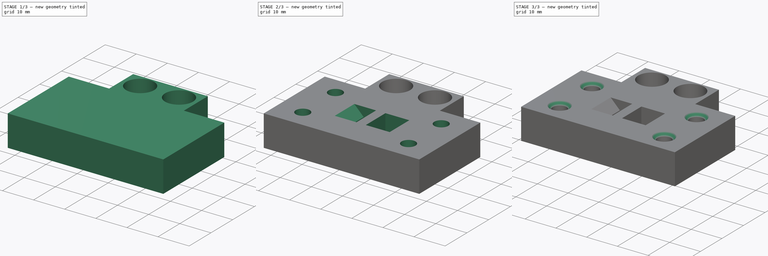
[diagram: build sequence overview — one tinted view per stage of 3, left to right]
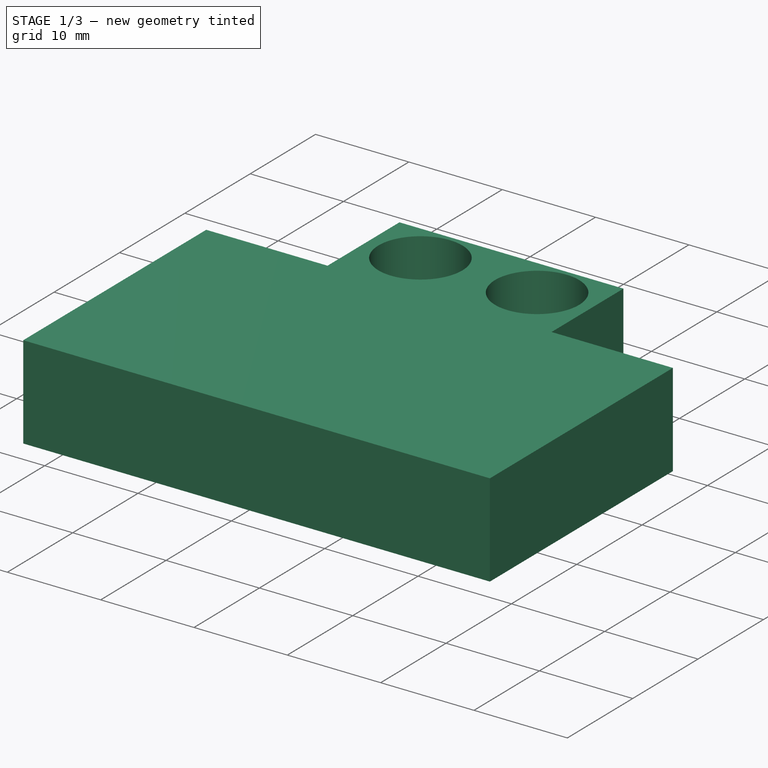
[diagram: stage 1 of 3 — iso view after this stage's code; geometry added in this stage tinted green]
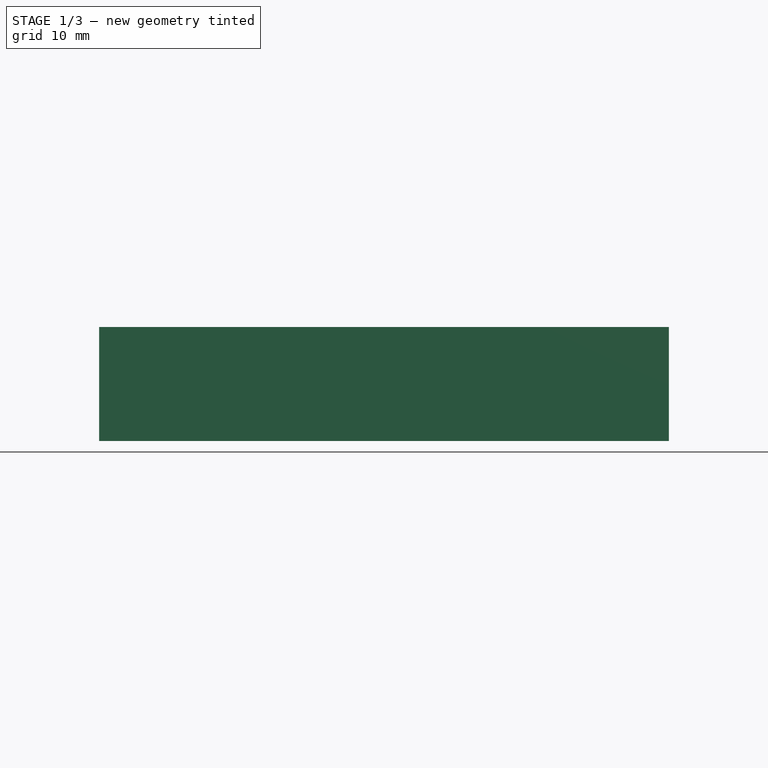
[diagram: stage 1 of 3 — front view after this stage's code; geometry added in this stage tinted green]
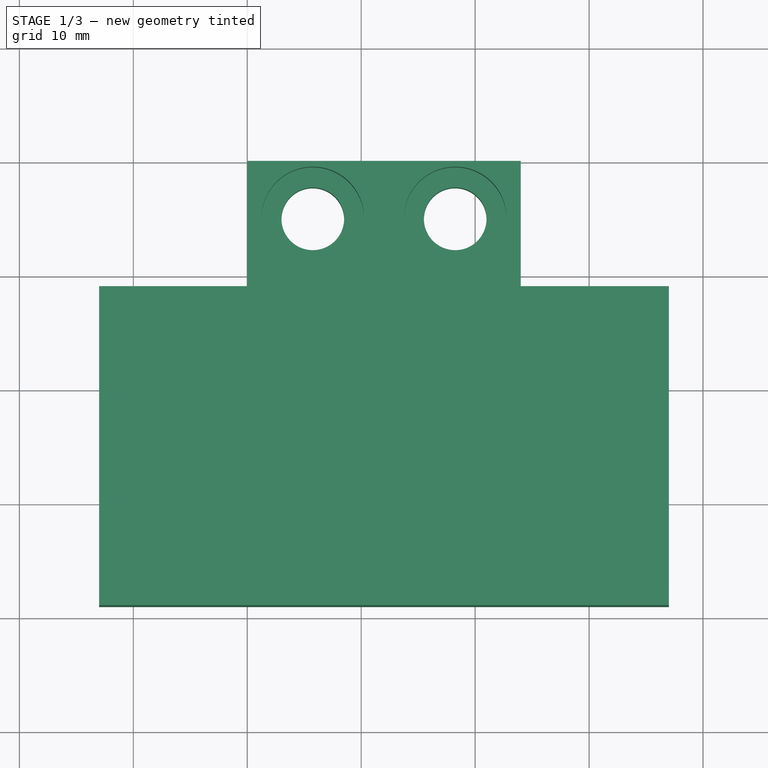
[diagram: stage 1 of 3 — top view after this stage's code; geometry added in this stage tinted green]
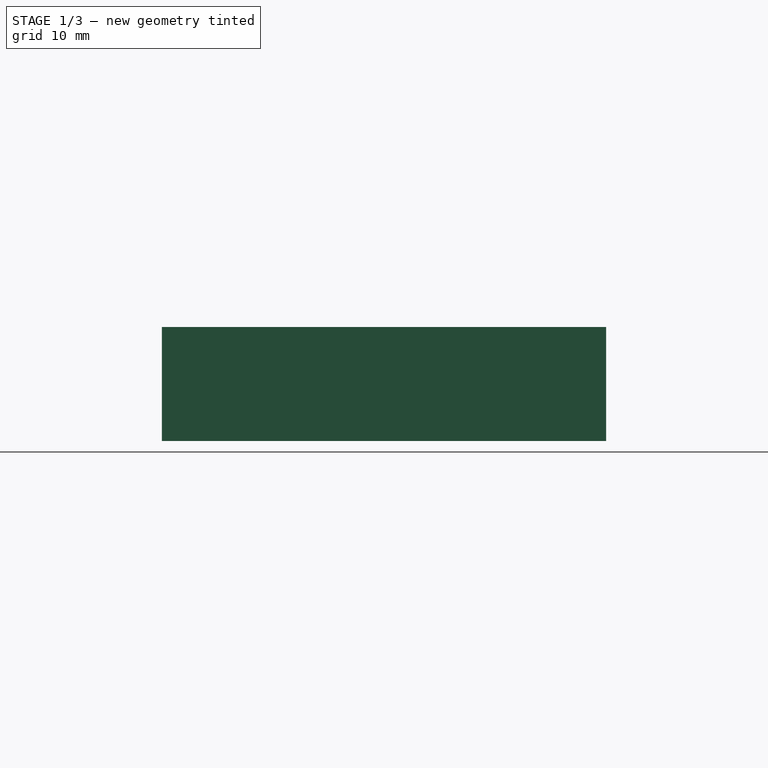
[diagram: stage 1 of 3 — right view after this stage's code; geometry added in this stage tinted green]
FCSTD DOCUMENT  (FreeCAD 0.19R24267 +148 (Git))
Label: X gantry belt holder
License: All rights reserved
LicenseURL: http://en.wikipedia.org/wiki/All_rights_reserved
objects: Sketcher::SketchObject×5, PartDesign::Pad×2, PartDesign::Hole×2, PartDesign::Pocket×1, PartDesign::Chamfer×1, PartDesign::Body×1
note: 18 computed .brp shape members not serialized (recipe doc carries the construction recipe); baked Part::Feature solids carry a one-line shape summary decoded from their .brp

FEATURE [Sketcher::SketchObject] Sketch
  FullyConstrained = false
  MapMode = 5
  Support = -> [XY_Plane]
  sketch-geometry (8):
    g0: LineSegment StartX=0 StartY=0 StartZ=0 EndX=24 EndY=0 EndZ=0
    g1: LineSegment StartX=24 StartY=0 StartZ=0 EndX=24 EndY=-11 EndZ=0
    g2: LineSegment StartX=0 StartY=-11 StartZ=0 EndX=0 EndY=0 EndZ=0
    g3: LineSegment StartX=0 StartY=-11 StartZ=0 EndX=-13 EndY=-11 EndZ=0
    g4: LineSegment StartX=-13 StartY=-11 StartZ=0 EndX=-13 EndY=-39 EndZ=0
    g5: LineSegment StartX=-13 StartY=-39 StartZ=0 EndX=37 EndY=-39 EndZ=0
    g6: LineSegment StartX=37 StartY=-39 StartZ=0 EndX=37 EndY=-11 EndZ=0
    g7: LineSegment StartX=37 StartY=-11 StartZ=0 EndX=24 EndY=-11 EndZ=0
  constraints (23):
    c: Coincident(g0,g1)
    c: Coincident(g2,g0)
    c: Horizontal(g0)
    c: Vertical(g1)
    c: Vertical(g2)
    c: Coincident(g0,g-1)
    c: DistanceX(g0,g0) = 24
    c: Coincident(g3,g2)
    c: PointOnObject(g4,g3)
    c: Coincident(g5,g4)
    c: Horizontal(g5)
    c: Coincident(g6,g5)
    c: Vertical(g6)
    c: Coincident(g7,g6)
    c: Coincident(g7,g1)
    c: Horizontal(g7)
    c: Horizontal(g3)
    c: Vertical(g4)
    c: Equal(g3,g7)
    c: PointOnObject(g3,g4)
    c: Equal(g2,g1)
    c: DistanceY(g2,g2) = 11
    c: DistanceY(g4,g4) = 28
FEATURE [PartDesign::Pad] Pad
  Direction = (1,1,1)
  Length = 10
  Length2 = 100
  Profile = -> Sketch
  Type = 0
FEATURE [Sketcher::SketchObject] Sketch002
  ExternalGeometry = -> [Pad]
  FullyConstrained = false
  MapMode = 5
  Placement = pos=(0,0,10) rot=(0,0,1;0rad)
  Support = -> [Pad]
  sketch-geometry (5):
    g0: LineSegment StartX=0 StartY=0 StartZ=0 EndX=5.75 EndY=-5 EndZ=0
    g1: LineSegment StartX=5.75 StartY=-5 StartZ=0 EndX=18.25 EndY=-5 EndZ=0
    g2: LineSegment StartX=18.25 StartY=-5 StartZ=0 EndX=24 EndY=0 EndZ=0
    g3: Circle CenterX=5.75 CenterY=-5 CenterZ=0 NormalX=0 NormalY=0 NormalZ=1 AngleXU=0 Radius=1.78908
    g4: Circle CenterX=18.25 CenterY=-5 CenterZ=0 NormalX=0 NormalY=0 NormalZ=1 AngleXU=0 Radius=1.78908
  constraints (11):
    c: Coincident(g0,g-1)
    c: Coincident(g1,g0)
    c: Horizontal(g1)
    c: Coincident(g2,g1)
    c: Coincident(g2,g-3)
    c: Equal(g0,g2)
    c: DistanceY(g0,g-1) = 5
    c: Coincident(g3,g0)
    c: Coincident(g4,g1)
    c: Equal(g4,g3)
    c: DistanceX(g1,g1) = 12.5
FEATURE [PartDesign::Hole] Hole  label="Hole mounting"
  BaseFeature = -> Pad
  Depth = 25
  DepthType = 1
  Diameter = 5.5
  DrillForDepth = false
  DrillPoint = 1
  DrillPointAngle = 118
  HoleCutCountersinkAngle = 90
  HoleCutCustomValues = false
  HoleCutDepth = 5
  HoleCutDiameter = 9
  HoleCutType = 1
  ModelActualThread = false
  Profile = -> Sketch002
  Tapered = false
  TaperedAngle = 90
  ThreadAngle = 0
  ThreadClass = 0
  ThreadCutOffInner = 0
  ThreadCutOffOuter = 0
  ThreadDirection = 0
  ThreadFit = 0
  ThreadPitch = 0
  ThreadSize = 0
  ThreadType = 0
  Threaded = false
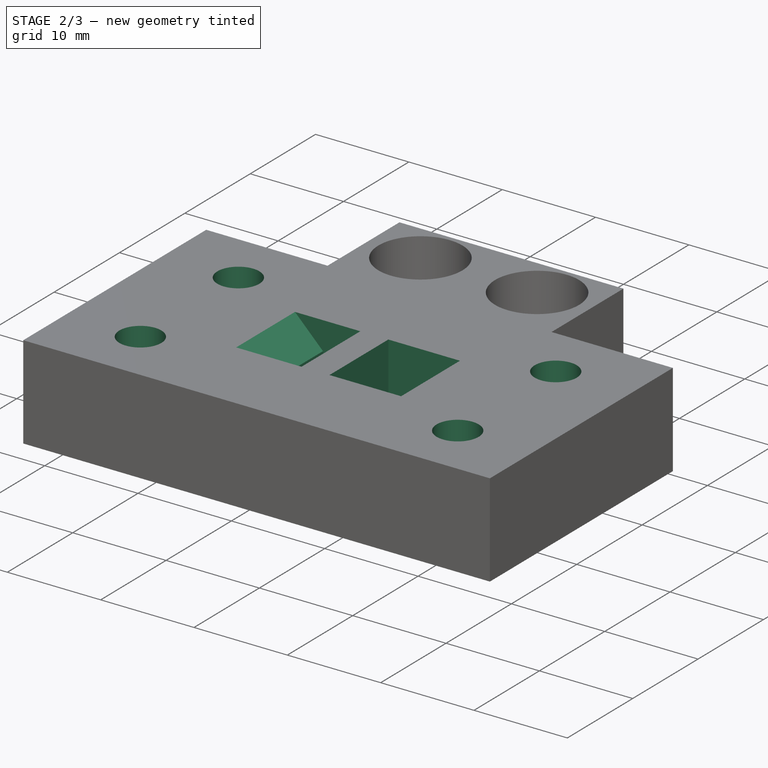
[diagram: stage 2 of 3 — iso view after this stage's code; geometry added in this stage tinted green]
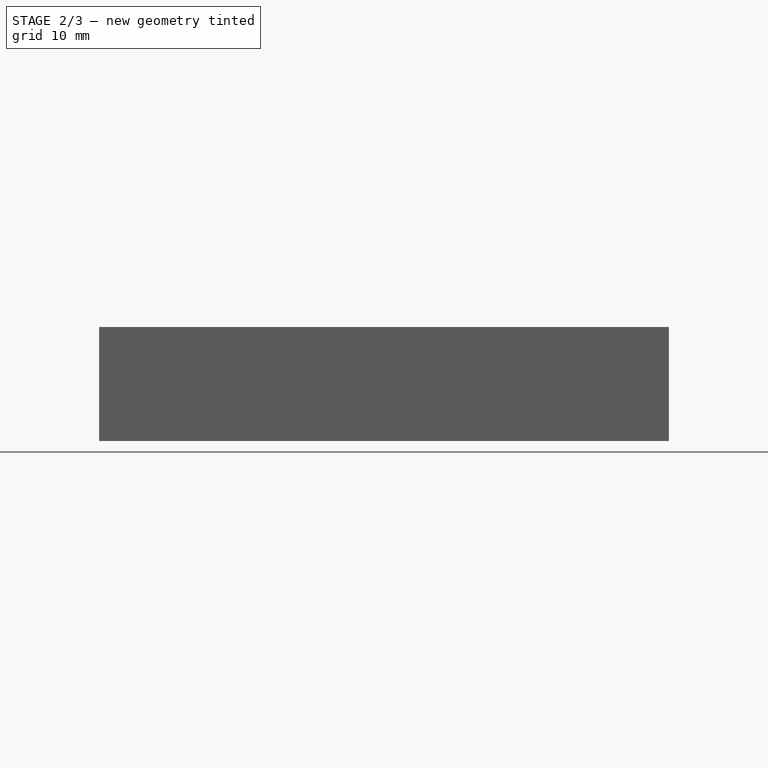
[diagram: stage 2 of 3 — front view after this stage's code; geometry added in this stage tinted green]
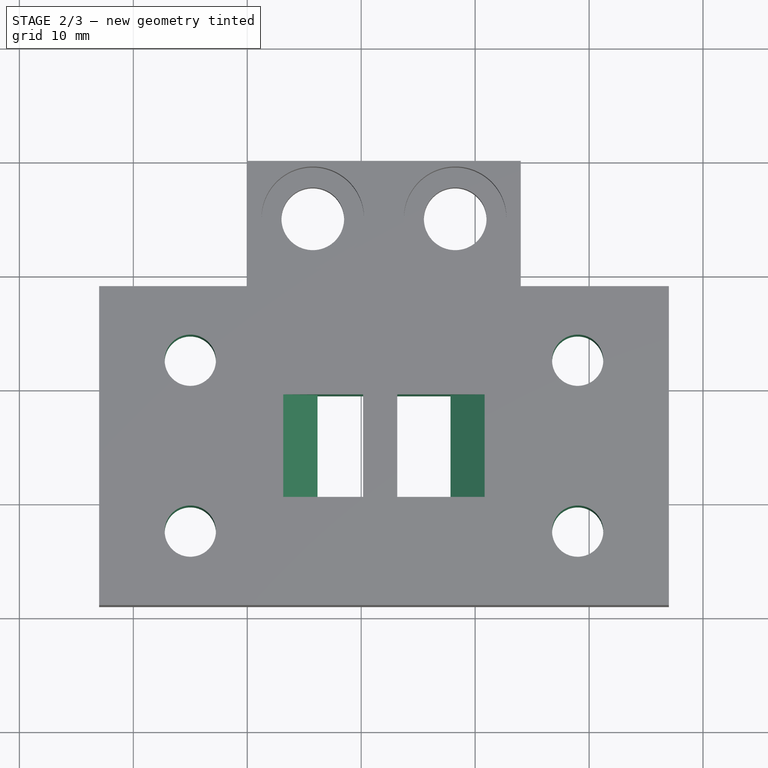
[diagram: stage 2 of 3 — top view after this stage's code; geometry added in this stage tinted green]
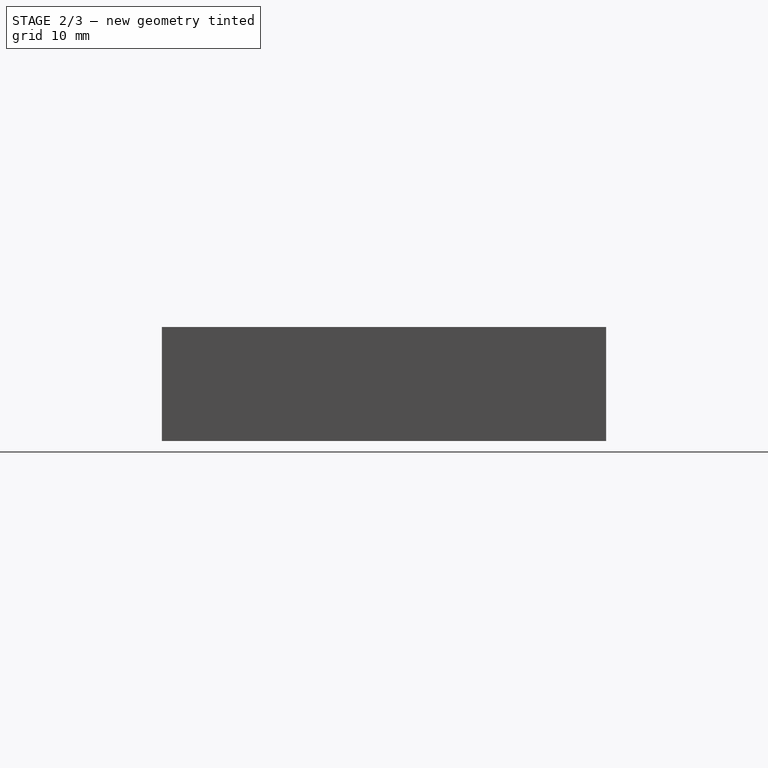
[diagram: stage 2 of 3 — right view after this stage's code; geometry added in this stage tinted green]
FEATURE [Sketcher::SketchObject] Sketch003
  AttachmentOffset = pos=(0,0,-9.5) rot=(0,0,1;0rad)
  ExternalGeometry = -> [Hole]
  FullyConstrained = false
  MapMode = 5
  Placement = pos=(0,-20.5,2.1e-15) rot=(0,0.707107,0.707107;3.14159rad)
  Support = -> [Hole]
  sketch-geometry (14):
    g0: LineSegment StartX=-3.16303 StartY=3.8e-15 StartZ=0 EndX=-6.16303 EndY=3 EndZ=0
    g1: LineSegment StartX=-10.163 StartY=10 StartZ=0 EndX=-10.163 EndY=3.6e-15 EndZ=0
    g2: LineSegment StartX=-10.163 StartY=3.8e-15 StartZ=0 EndX=-3.16303 EndY=3.8e-15 EndZ=0
    g3: LineSegment StartX=-10.163 StartY=10 StartZ=0 EndX=-3.16303 EndY=10 EndZ=0
    g4: LineSegment StartX=-20.837 StartY=10 StartZ=0 EndX=-13.163 EndY=10 EndZ=0
    g5: LineSegment StartX=-13.163 StartY=10 StartZ=0 EndX=-13.163 EndY=1.8e-15 EndZ=0
    g6: LineSegment StartX=-13.163 StartY=1.8e-15 StartZ=0 EndX=-20.837 EndY=1.8e-15 EndZ=0
    g7: LineSegment StartX=-20.837 StartY=1.8e-15 StartZ=0 EndX=-17.837 EndY=3 EndZ=0
    g8: LineSegment StartX=-17.837 StartY=3 StartZ=0 EndX=-17.837 EndY=7 EndZ=0
    g9: LineSegment StartX=-17.837 StartY=7 StartZ=0 EndX=-20.837 EndY=10 EndZ=0
    g10: LineSegment StartX=-6.16303 StartY=3 StartZ=0 EndX=-6.16303 EndY=7 EndZ=0
    g11: LineSegment StartX=-6.16303 StartY=7 StartZ=0 EndX=-3.16303 EndY=10 EndZ=0
    g12: LineSegment StartX=-24 StartY=2.4e-15 StartZ=0 EndX=-20.837 EndY=10 EndZ=0
    g13: LineSegment StartX=0 StartY=0 StartZ=0 EndX=-3.16303 EndY=10 EndZ=0
  constraints (39):
    c: Vertical(g1)
    c: Coincident(g2,g1)
    c: Coincident(g2,g0)
    c: Coincident(g3,g1)
    c: Horizontal(g3)
    c: Horizontal(g2)
    c: Horizontal(g4)
    c: Coincident(g5,g4)
    c: Coincident(g6,g5)
    c: Horizontal(g6)
    c: Coincident(g7,g6)
    c: Coincident(g8,g7)
    c: Vertical(g8)
    c: Coincident(g9,g8)
    c: Coincident(g9,g4)
    c: Coincident(g10,g0)
    c: Coincident(g11,g10)
    c: Coincident(g11,g3)
    c: Vertical(g10)
    c: Parallel(g7,g11)
    c: Parallel(g0,g9)
    c: Perpendicular(g7,g9)
    c: Equal(g8,g10)
    c: Equal(g11,g9)
    c: Equal(g7,g0)
    c: Equal(g0,g11)
    c: Vertical(g5)
    c: PointOnObject(g4,g3)
    c: PointOnObject(g4,g-3)
    c: PointOnObject(g5,g-4)
    c: Angle(g6,g7) = 0.785398
    c: DistanceX(g5,g1) = 3
    c: Coincident(g12,g-4)
    c: Coincident(g12,g4)
    c: Coincident(g13,g-1)
    c: Coincident(g13,g3)
    c: Equal(g12,g13)
    c: DistanceY(g10,g10) = 4
    c: DistanceX(g1,g10) = 4
FEATURE [PartDesign::Pocket] Pocket  label="Pocket belt"
  BaseFeature = -> Hole
  Length = 9
  Length2 = 100
  Profile = -> Sketch003
  Type = 0
FEATURE [Sketcher::SketchObject] Sketch004
  ExternalGeometry = -> [Pocket]
  FullyConstrained = false
  MapMode = 5
  Placement = pos=(0,0,10) rot=(0,0,1;0rad)
  Support = -> [Pocket]
  sketch-geometry (11):
    g0: LineSegment StartX=-5 StartY=-17.5 StartZ=0 EndX=29 EndY=-17.5 EndZ=0
    g1: LineSegment StartX=29 StartY=-17.5 StartZ=0 EndX=29 EndY=-32.5 EndZ=0
    g2: LineSegment StartX=29 StartY=-32.5 StartZ=0 EndX=-5 EndY=-32.5 EndZ=0
    g3: LineSegment StartX=-5 StartY=-32.5 StartZ=0 EndX=-5 EndY=-17.5 EndZ=0
    g4: Circle CenterX=-5 CenterY=-17.5 CenterZ=0 NormalX=0 NormalY=0 NormalZ=1 AngleXU=0 Radius=1.51068
    g5: Circle CenterX=-5 CenterY=-32.5 CenterZ=0 NormalX=0 NormalY=0 NormalZ=1 AngleXU=0 Radius=1.51068
    g6: Circle CenterX=29 CenterY=-32.5 CenterZ=0 NormalX=0 NormalY=0 NormalZ=1 AngleXU=0 Radius=1.51068
    g7: Circle CenterX=29 CenterY=-17.5 CenterZ=0 NormalX=0 NormalY=0 NormalZ=1 AngleXU=0 Radius=1.51068
    g8: LineSegment StartX=-13 StartY=-11 StartZ=0 EndX=-5 EndY=-17.5 EndZ=0
    g9: LineSegment StartX=29 StartY=-17.5 StartZ=0 EndX=37 EndY=-11 EndZ=0
    g10: LineSegment StartX=-13 StartY=-39 StartZ=0 EndX=-5 EndY=-32.5 EndZ=0
  constraints (25):
    c: Coincident(g0,g1)
    c: Coincident(g1,g2)
    c: Coincident(g2,g3)
    c: Coincident(g3,g0)
    c: Horizontal(g0)
    c: Horizontal(g2)
    c: Vertical(g1)
    c: Vertical(g3)
    c: Coincident(g4,g0)
    c: Coincident(g5,g2)
    c: Coincident(g6,g1)
    c: Coincident(g7,g0)
    c: Equal(g4,g5)
    c: Equal(g4,g6)
    c: Equal(g4,g7)
    c: Coincident(g8,g-3)
    c: Coincident(g8,g4)
    c: Coincident(g9,g7)
    c: Coincident(g9,g-4)
    c: Equal(g9,g8)
    c: Coincident(g10,g-5)
    c: Coincident(g10,g5)
    c: Equal(g8,g10)
    c: DistanceY(g3,g3) = 15
    c: DistanceX(g8,g4) = 8
FEATURE [PartDesign::Hole] Hole001  label="Hole for belt clamps"
  BaseFeature = -> Pocket
  Depth = 25
  DepthType = 1
  Diameter = 4.5
  DrillForDepth = false
  DrillPoint = 1
  DrillPointAngle = 118
  HoleCutCountersinkAngle = 90
  HoleCutCustomValues = false
  HoleCutDepth = 4.95
  HoleCutDiameter = 8.5
  HoleCutType = 0
  ModelActualThread = false
  Profile = -> Sketch004
  Tapered = false
  TaperedAngle = 90
  ThreadAngle = 0
  ThreadClass = 0
  ThreadCutOffInner = 0
  ThreadCutOffOuter = 0
  ThreadDirection = 0
  ThreadFit = 0
  ThreadPitch = 0
  ThreadSize = 0
  ThreadType = 0
  Threaded = false
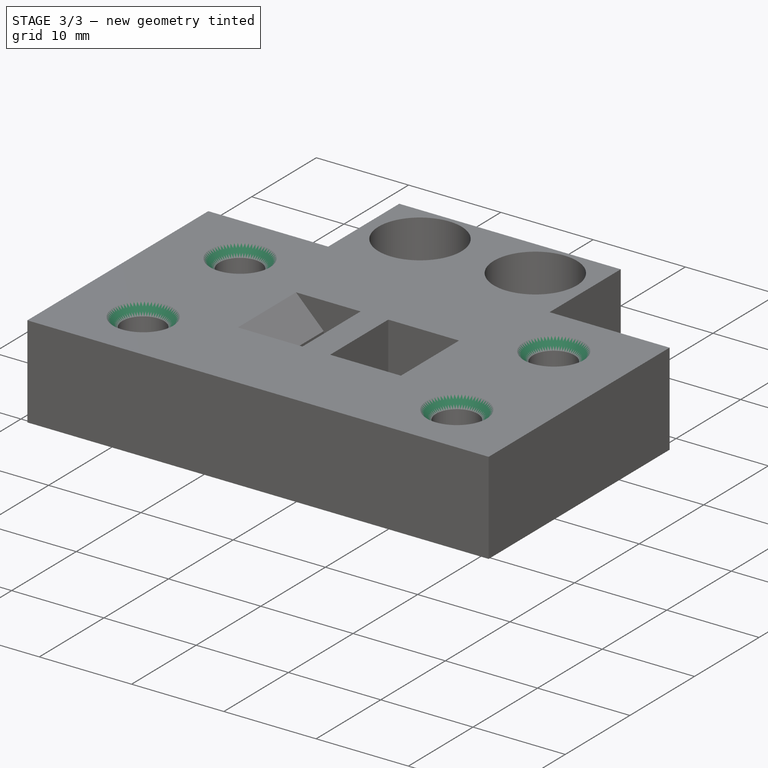
[diagram: stage 3 of 3 — iso view after this stage's code; geometry added in this stage tinted green]
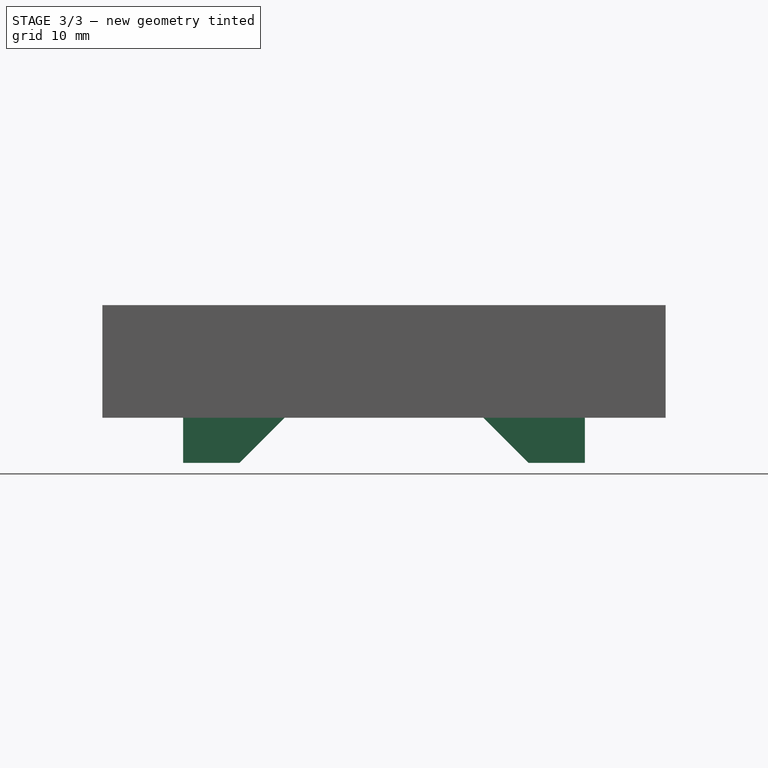
[diagram: stage 3 of 3 — front view after this stage's code; geometry added in this stage tinted green]
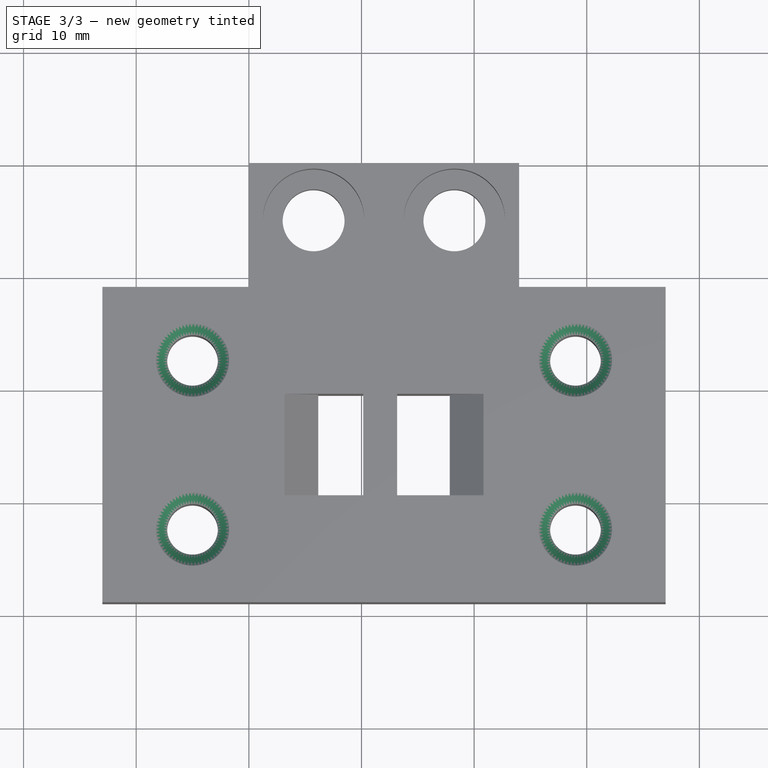
[diagram: stage 3 of 3 — top view after this stage's code; geometry added in this stage tinted green]
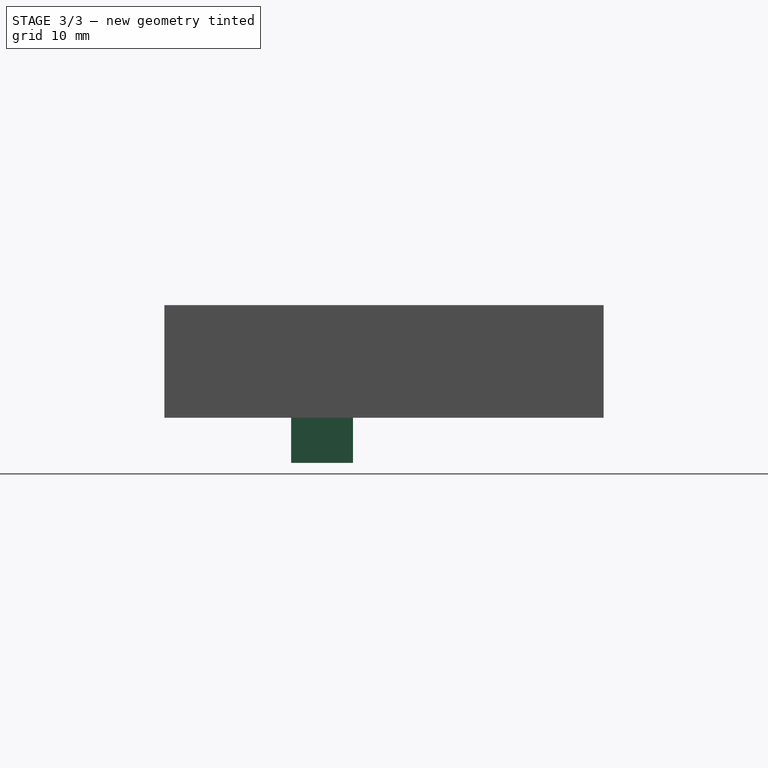
[diagram: stage 3 of 3 — right view after this stage's code; geometry added in this stage tinted green]
FEATURE [PartDesign::Chamfer] Chamfer
  Angle = 45
  Base = -> Hole001 [Edge47,Edge40,Edge45,Edge35]
  BaseFeature = -> Hole001
  ChamferType = 0
  FlipDirection = false
  Size = 1
  Size2 = 1
  SupportTransform = false
FEATURE [Sketcher::SketchObject] Sketch005
  AttachmentOffset = pos=(0,0,25) rot=(0,0,1;0rad)
  ExternalGeometry = -> [Chamfer]
  FullyConstrained = true
  MapMode = 5
  Placement = pos=(0,-25,-5.6e-15) rot=(1,0,0;1.5708rad)
  Support = -> [XZ_Plane]
  sketch-geometry (8):
    g0: LineSegment StartX=-0.836975 StartY=-4 StartZ=0 EndX=-5.83697 EndY=-4 EndZ=0
    g1: LineSegment StartX=-5.83697 StartY=0 StartZ=0 EndX=3.16303 EndY=0 EndZ=0
    g2: LineSegment StartX=-5.83697 StartY=0 StartZ=0 EndX=-5.83697 EndY=-4 EndZ=0
    g3: LineSegment StartX=-0.836975 StartY=-4 StartZ=0 EndX=3.16303 EndY=0 EndZ=0
    g4: LineSegment StartX=20.837 StartY=8.5e-15 StartZ=0 EndX=24.837 EndY=-4 EndZ=0
    g5: LineSegment StartX=24.837 StartY=-4 StartZ=0 EndX=29.837 EndY=-4 EndZ=0
    g6: LineSegment StartX=29.837 StartY=-4 StartZ=0 EndX=29.837 EndY=8.9e-15 EndZ=0
    g7: LineSegment StartX=29.837 StartY=8.5e-15 StartZ=0 EndX=20.837 EndY=8.5e-15 EndZ=0
  constraints (23):
    c: Coincident(g2,g1)
    c: Coincident(g2,g0)
    c: Vertical(g2)
    c: Horizontal(g1)
    c: Coincident(g3,g0)
    c: Coincident(g3,g1)
    c: Horizontal(g0)
    c: PointOnObject(g-1,g1)
    c: PointOnObject(g-3,g3)
    c: Coincident(g-4,g4)
    c: Coincident(g4,g5)
    c: Horizontal(g5)
    c: Coincident(g5,g6)
    c: Vertical(g6)
    c: Coincident(g6,g7)
    c: Coincident(g7,g4)
    c: Horizontal(g7)
    c: Equal(g0,g5)
    c: PointOnObject(g4,g0)
    c: Parallel(g4,g-4)
    c: DistanceY(g2,g2) = 4
    c: DistanceX(g5,g5) = 5
    c: Parallel(g3,g-3)
FEATURE [PartDesign::Pad] Pad001
  BaseFeature = -> Chamfer
  Direction = (1,1,1)
  Length = 5.5
  Length2 = 100
  Midplane = true
  Profile = -> Sketch005
  Type = 0
FEATURE [PartDesign::Body] Body
  Group = -> [Sketch,Pad,Sketch002,Hole,Sketch003,Pocket,Sketch004,Hole001,Chamfer,Sketch005,Pad001]
  Origin = -> Origin
  Tip = -> Pad001
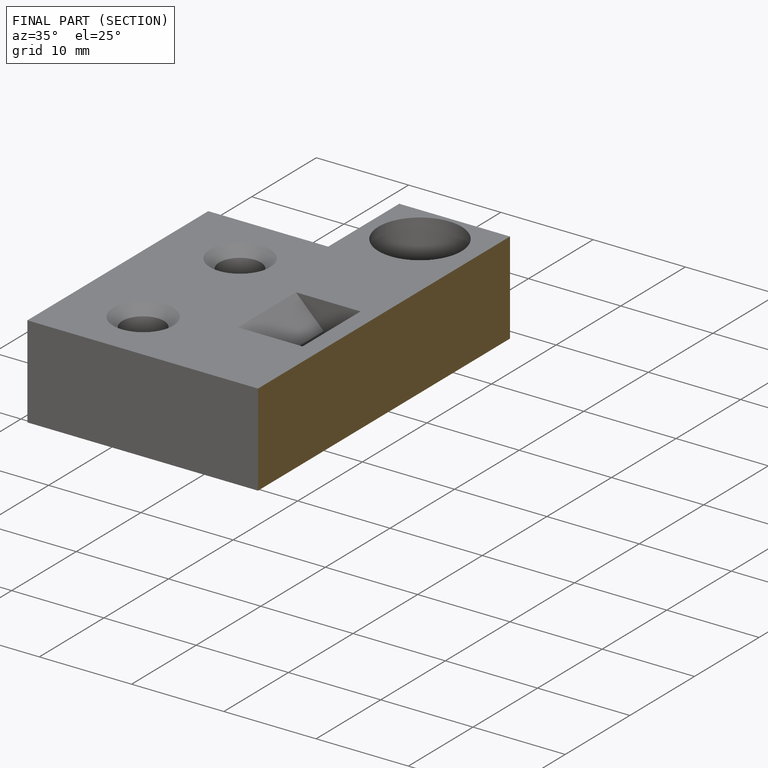
[diagram: finished part — half-section view (interior)]
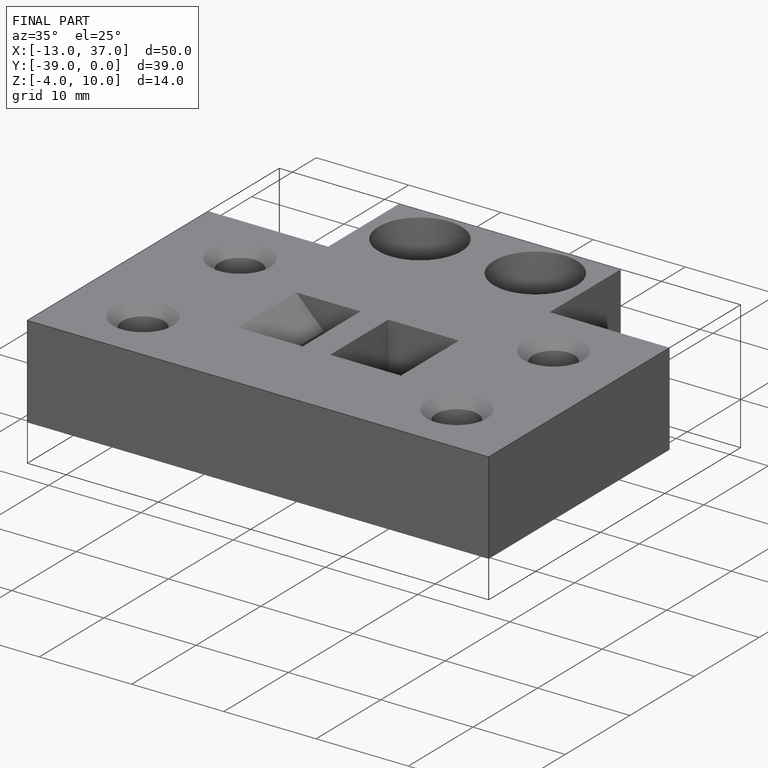
[diagram: finished part — iso view with bounding-box wireframe]
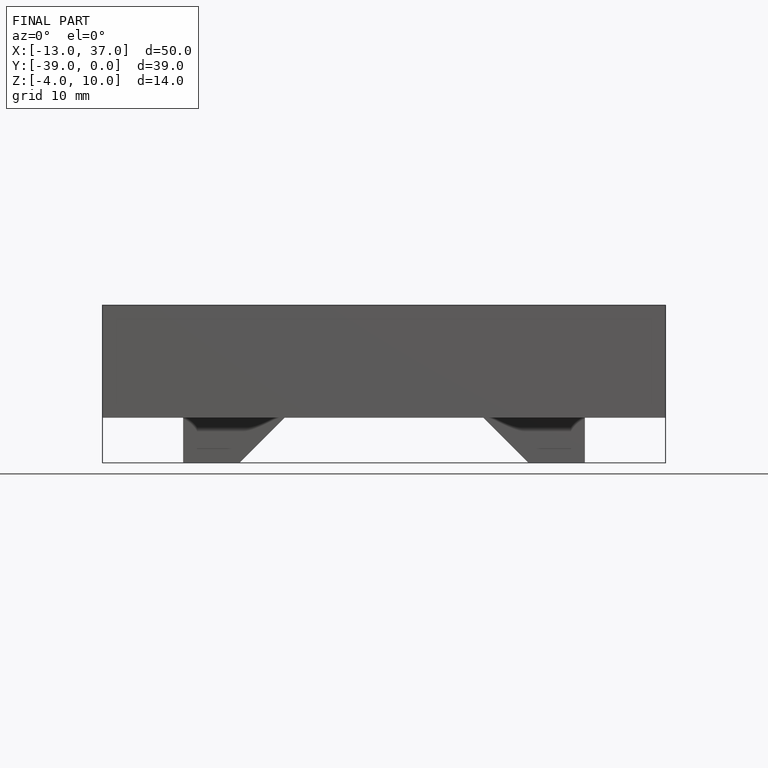
[diagram: finished part — front view with bounding-box wireframe]
